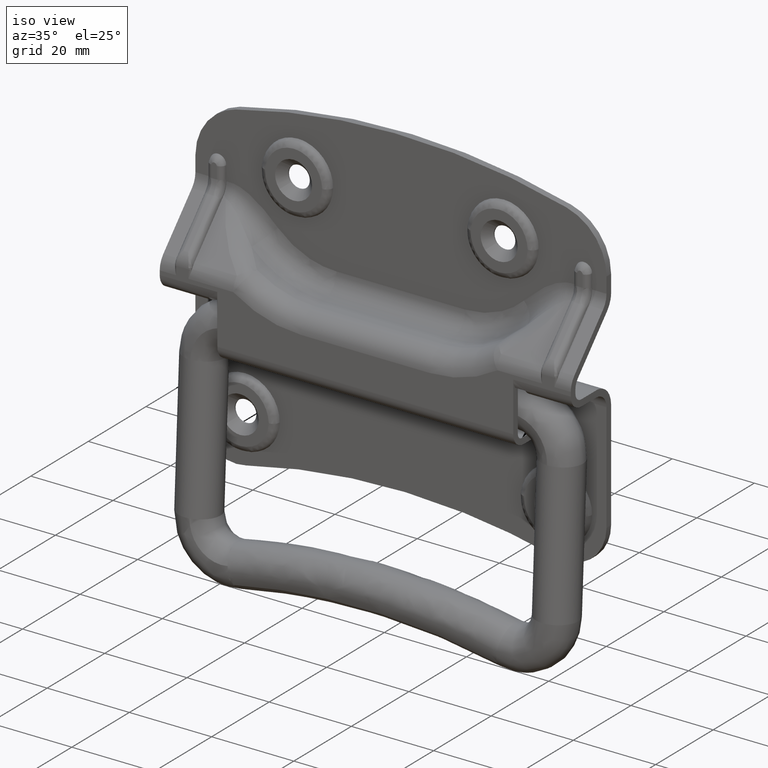
[diagram: clean part render]
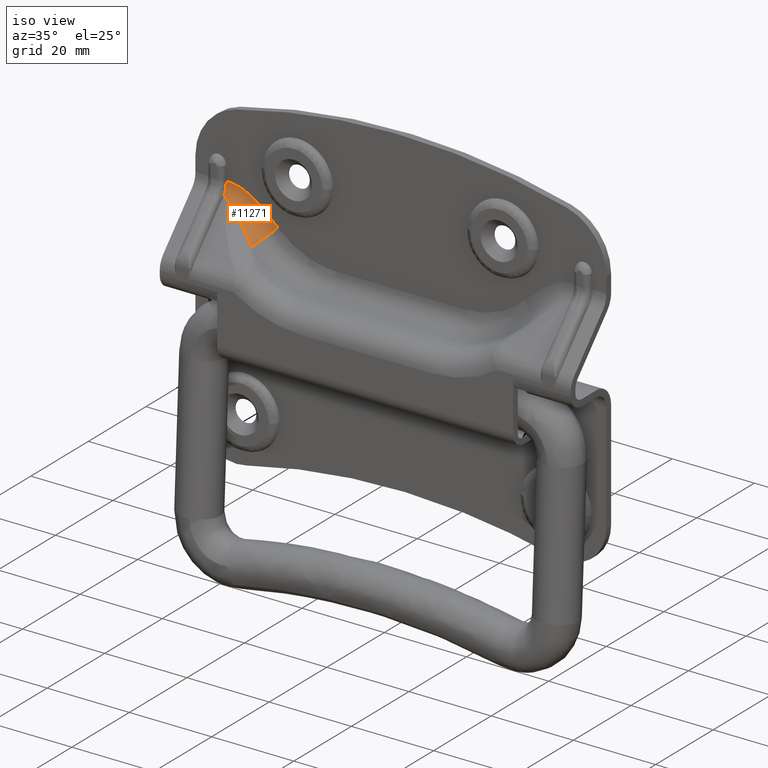
[diagram: same view with one face highlighted and labeled with its STEP entity id]
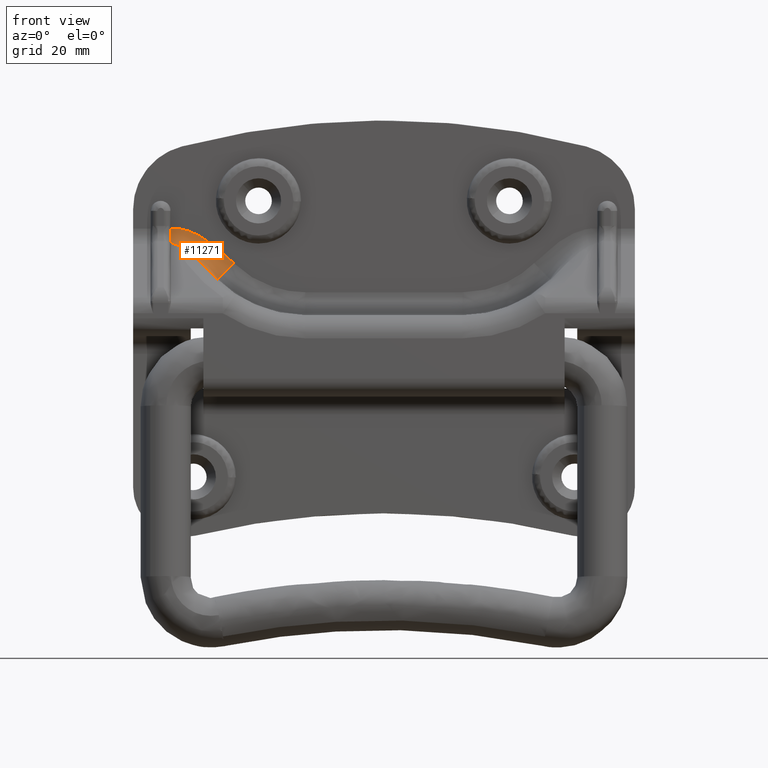
[diagram: same view with one face highlighted and labeled with its STEP entity id]
A machine part, iso view. The second image highlights one B-rep face of the part: STEP entity #11271.
A second angle (front view) of the same face is appended — the face is thin or edge-on in the first view.
In plain terms, the highlighted face is a freeform B-spline surface patch.
Its self-contained STEP definition (entity closure, byte-faithful):
#11035=CARTESIAN_POINT('',(-44.129247402102422,5.800000000000009,26.096322573024537));
#11036=CARTESIAN_POINT('',(-43.810599507989188,5.800000000000005,26.221779869753377));
#11037=CARTESIAN_POINT('',(-43.474151980441832,5.800000000000014,26.321525528890337));
#11038=CARTESIAN_POINT('',(-42.798873674312858,5.800000000000012,26.461865028079909));
#11039=CARTESIAN_POINT('',(-42.457860426138097,5.800000000000011,26.503902602576598));
#11040=CARTESIAN_POINT('',(-41.769754095088082,5.800000000000011,26.537330320813293));
#11041=CARTESIAN_POINT('',(-41.420781215043903,5.800000000000009,26.528275215803003));
#11042=CARTESIAN_POINT('',(-40.735677059251117,5.800000000000011,26.465857584679391));
#11043=CARTESIAN_POINT('',(-40.397513204452878,5.800000000000010,26.412837929170649));
#11044=CARTESIAN_POINT('',(-39.728569050340660,5.800000000000013,26.270097036765275));
#11045=CARTESIAN_POINT('',(-39.397796440588742,5.800000000000013,26.180341488654598));
#11046=CARTESIAN_POINT('',(-38.742640120839752,5.800000000000011,25.969079540948474));
#11047=CARTESIAN_POINT('',(-38.418222764820399,5.800000000000015,25.847371029586679));
#11048=CARTESIAN_POINT('',(-37.469733159872490,5.800000000000007,25.448261968489913));
#11049=CARTESIAN_POINT('',(-36.863704475980079,5.800000000000003,25.135424248554177));
#11050=CARTESIAN_POINT('',(-35.100792309033508,5.800000000000025,24.098939470681604));
#11051=CARTESIAN_POINT('',(-33.994541250280378,5.800000000000025,23.275017461485643));
#11052=CARTESIAN_POINT('',(-31.891290717198352,5.799999999999996,21.521718956481283));
#11053=CARTESIAN_POINT('',(-30.889960550761291,5.799999999999973,20.587795038008892));
#11054=CARTESIAN_POINT('',(-29.889224479801527,5.800000000000011,19.612287233418286));
#11055=CARTESIAN_POINT('',(-29.869723454922511,5.800000000000010,19.593277823725728));
#11056=CARTESIAN_POINT('',(-29.850222669244793,5.800000000000012,19.574268647204278));
#11057=CARTESIAN_POINT('',(-44.126370039664948,5.800000000000010,26.089010609007595));
#11058=CARTESIAN_POINT('',(-43.808132485955497,5.800000000000011,26.214274064597198));
#11059=CARTESIAN_POINT('',(-43.472107164489870,5.800000000000012,26.313835460502755));
#11060=CARTESIAN_POINT('',(-42.797658476548037,5.800000000000008,26.453837796370820));
#11061=CARTESIAN_POINT('',(-42.457054916533835,5.800000000000012,26.495721110857879));
#11062=CARTESIAN_POINT('',(-41.769760910859596,5.800000000000014,26.528862089496346));
#11063=CARTESIAN_POINT('',(-41.421192110520224,5.800000000000011,26.519674166534195));
#11064=CARTESIAN_POINT('',(-40.736869194580372,5.800000000000011,26.457014033900418));
#11065=CARTESIAN_POINT('',(-40.399084466360726,5.800000000000011,26.403883895159709));
#11066=CARTESIAN_POINT('',(-39.730880078420228,5.800000000000011,26.260937359654243));
#11067=CARTESIAN_POINT('',(-39.400467667804733,5.800000000000011,26.171086807896788));
#11068=CARTESIAN_POINT('',(-38.746015528422340,5.800000000000011,25.959645875141966));
#11069=CARTESIAN_POINT('',(-38.421941782681500,5.800000000000012,25.837853547400840));
#11070=CARTESIAN_POINT('',(-37.474438644156862,5.800000000000006,25.438510340242125));
#11071=CARTESIAN_POINT('',(-36.869024991724274,5.800000000000007,25.125534397935887));
#11072=CARTESIAN_POINT('',(-35.107832813597405,5.800000000000020,24.088664007882858));
#11073=CARTESIAN_POINT('',(-34.002602355344024,5.800000000000021,23.264513479462611));
#11074=CARTESIAN_POINT('',(-31.901162803484180,5.800000000000003,21.510704777768389));
#11075=CARTESIAN_POINT('',(-30.900607161354724,5.799999999999993,20.576522395235394));
#11076=CARTESIAN_POINT('',(-29.900602605575816,5.800000000000014,19.600642257193652));
#11077=CARTESIAN_POINT('',(-29.881112713780688,5.800000000000011,19.581622545547798));
#11078=CARTESIAN_POINT('',(-29.861622941694637,5.800000000000014,19.562602950723136));
#11079=CARTESIAN_POINT('',(-43.513698703269228,5.800000000000012,24.532087953876587));
#11080=CARTESIAN_POINT('',(-43.282569941617098,5.800000000000456,24.615273325542706));
#11081=CARTESIAN_POINT('',(-43.036064637889488,5.800000000000011,24.673982814479022));
#11082=CARTESIAN_POINT('',(-42.537798935642371,5.800000000000012,24.737283662470698));
#11083=CARTESIAN_POINT('',(-42.284488009370882,5.800000000000013,24.742973887973356));
#11084=CARTESIAN_POINT('',(-41.771227668812728,5.800000000000013,24.706493830185128));
#11085=CARTESIAN_POINT('',(-41.509856070422202,5.800000000000161,24.663720203882502));
#11086=CARTESIAN_POINT('',(-40.995681077487653,5.799999999999862,24.537084330830055));
#11087=CARTESIAN_POINT('',(-40.741366129605829,5.800000000000011,24.453348698747487));
#11088=CARTESIAN_POINT('',(-40.238088623704847,5.800000000000013,24.250634436988040));
#11089=CARTESIAN_POINT('',(-39.989127419350297,5.799999999999713,24.131627924384780));
#11090=CARTESIAN_POINT('',(-39.496453837452286,5.800000000000310,23.862303837898736));
#11091=CARTESIAN_POINT('',(-39.252719071193717,5.799999999999713,23.711779315141598));
#11092=CARTESIAN_POINT('',(-38.541523735642798,5.800000000000605,23.227087138715230));
#11093=CARTESIAN_POINT('',(-38.089054900537235,5.800000000000896,22.857725386909131));
#11094=CARTESIAN_POINT('',(-36.782613746668957,5.799999999998238,21.644357777024506));
#11095=CARTESIAN_POINT('',(-35.976527269559689,5.799999999998233,20.692400642561605));
#11096=CARTESIAN_POINT('',(-34.484690173758501,5.800000000001793,18.628291542915154));
#11097=CARTESIAN_POINT('',(-33.795164417720741,5.800000000005353,17.511762051827183));
#11098=CARTESIAN_POINT('',(-33.132601706515139,5.799999999999900,16.292843289666976));
#11099=CARTESIAN_POINT('',(-33.119100460993984,5.799999999999788,16.268005004626264));
#11100=CARTESIAN_POINT('',(-33.105575771386377,5.799999999999676,16.243123589423931));
#11101=CARTESIAN_POINT('',(-43.043007962009668,4.728965802054274,23.335966909698833));
#11102=CARTESIAN_POINT('',(-42.879905199213745,4.720749589136831,23.389590133279398));
#11103=CARTESIAN_POINT('',(-42.703755856253636,4.705070412870889,23.422443848518256));
#11104=CARTESIAN_POINT('',(-42.342470159409409,4.659965576453086,23.443972771186921));
#11105=CARTESIAN_POINT('',(-42.156260972881093,4.630610372662917,23.433451407142428));
#11106=CARTESIAN_POINT('',(-41.772976020229592,4.558881474593550,23.373260544037816));
#11107=CARTESIAN_POINT('',(-41.574767495029569,4.516178523257872,23.323016335086930));
#11108=CARTESIAN_POINT('',(-41.178130859876447,4.420814902273051,23.189811008568210));
#11109=CARTESIAN_POINT('',(-40.978608549490836,4.368006107771708,23.106861166083959));
#11110=CARTESIAN_POINT('',(-40.576545982036180,4.253209473984529,22.912860747387363));
#11111=CARTESIAN_POINT('',(-40.374005964547599,4.191216634694110,22.801786904013220));
#11112=CARTESIAN_POINT('',(-39.965279362146667,4.058841439724507,22.554844510371815));
#11113=CARTESIAN_POINT('',(-39.759024550524252,3.988397894129128,22.418808890271212));
#11114=CARTESIAN_POINT('',(-39.144647487758377,3.769527085627074,21.985693360595445));
#11115=CARTESIAN_POINT('',(-38.736853161844415,3.612360426334563,21.661600786608421));
#11116=CARTESIAN_POINT('',(-37.505643538506256,3.114722862935908,20.612450467106253));
#11117=CARTESIAN_POINT('',(-36.670817358265545,2.746588448942540,19.807755871413146));
#11118=CARTESIAN_POINT('',(-34.957712672674859,1.982625868513342,18.115853792657564));
#11119=CARTESIAN_POINT('',(-34.076577985680075,1.585211753190460,17.224637735192623));
#11120=CARTESIAN_POINT('',(-33.127583743913085,1.175708148331474,16.299609833785947));
#11121=CARTESIAN_POINT('',(-33.109088032554432,1.167727003512622,16.281581221693152));
#11122=CARTESIAN_POINT('',(-33.090592434778046,1.159745907706015,16.263552720314141));
#11123=CARTESIAN_POINT('',(-43.040797796437580,4.723936676338937,23.330350428811983));
#11124=CARTESIAN_POINT('',(-42.878015405617170,4.715684431200804,23.383837734312618));
#11125=CARTESIAN_POINT('',(-42.702197777724187,4.699936674687395,23.416575824260622));
#11126=CARTESIAN_POINT('',(-42.341556894703615,4.654635316250219,23.437925862925770));
#11127=CARTESIAN_POINT('',(-42.155662540667144,4.625152861962747,23.427339900092804));
#11128=CARTESIAN_POINT('',(-41.772984143061265,4.553115244310635,23.367066349050464));
#11129=CARTESIAN_POINT('',(-41.575068260193810,4.510229974452265,23.316804223401714));
#11130=CARTESIAN_POINT('',(-41.178971106656235,4.414463259525715,23.183606331008885));
#11131=CARTESIAN_POINT('',(-40.979697428076129,4.361433642846239,23.100681152238199));
#11132=CARTESIAN_POINT('',(-40.578087841495332,4.246162992219155,22.906766452296065));
#11133=CARTESIAN_POINT('',(-40.375752158025698,4.183917586578239,22.795753416967369));
#11134=CARTESIAN_POINT('',(-39.967387721580131,4.051011260089714,22.548964723410830));
#11135=CARTESIAN_POINT('',(-39.761290647321843,3.980289615830222,22.413021877768220));
#11136=CARTESIAN_POINT('',(-39.147306583034201,3.760574990944365,21.980220214629497));
#11137=CARTESIAN_POINT('',(-38.739677685603155,3.602821901271269,21.656385455611421));
#11138=CARTESIAN_POINT('',(-37.508682492967793,3.103436419378105,20.608113274698972));
#11139=CARTESIAN_POINT('',(-36.673652189182803,2.734121173939062,19.804143810130903));
#11140=CARTESIAN_POINT('',(-34.959519846621305,1.968041659326364,18.113896033452502));
#11141=CARTESIAN_POINT('',(-34.077612881333614,1.569711910489630,17.223581838316477));
#11142=CARTESIAN_POINT('',(-33.127566081532095,1.159431421886771,16.299633650878629));
#11143=CARTESIAN_POINT('',(-33.109052821257769,1.151436416301193,16.281628965975123));
#11144=CARTESIAN_POINT('',(-33.090539788027954,1.143441508765434,16.263624501878986));
#11152=(BOUNDED_SURFACE()B_SPLINE_SURFACE(3,2,((#11035,#11057,#11079,#11101,#11123),(#11036,#11058,#11080,#11102,#11124),(#11037,#11059,#11081,#11103,#11125),(#11038,#11060,#11082,#11104,#11126),(#11039,#11061,#11083,#11105,#11127),(#11040,#11062,#11084,#11106,#11128),(#11041,#11063,#11085,#11107,#11129),(#11042,#11064,#11086,#11108,#11130),(#11043,#11065,#11087,#11109,#11131),(#11044,#11066,#11088,#11110,#11132),(#11045,#11067,#11089,#11111,#11133),(#11046,#11068,#11090,#11112,#11134),(#11047,#11069,#11091,#11113,#11135),(#11048,#11070,#11092,#11114,#11136),(#11049,#11071,#11093,#11115,#11137),(#11050,#11072,#11094,#11116,#11138),(#11051,#11073,#11095,#11117,#11139),(#11052,#11074,#11096,#11118,#11140),(#11053,#11075,#11097,#11119,#11141),(#11054,#11076,#11098,#11120,#11142),(#11055,#11077,#11099,#11121,#11143),(#11056,#11078,#11100,#11122,#11144)),.UNSPECIFIED.,.F.,.F.,.U.)B_SPLINE_SURFACE_WITH_KNOTS((4,2,2,2,2,2,2,2,2,2,4),(3,1,1,3),(0.0,1.037516502630683,2.075033005261373,3.112549507892056,4.150066010522738,5.187582513153428,6.225099015784111,8.300132021045483,12.450198031568229,16.600264042090970,16.682769273677199),(0.0,0.038422300010084,7.688011259727680,7.726426633866669),.UNSPECIFIED.)GEOMETRIC_REPRESENTATION_ITEM()RATIONAL_B_SPLINE_SURFACE(((1.000599902426178,1.000299951213089,0.940281985006215,1.000299897144919,1.000599794289838),(1.000604606618789,1.000302303309394,0.939813700444209,1.000302248817244,1.000604497634488),(1.000613717035328,1.000306858517664,0.938906792974311,1.000306803204408,1.000613606408815),(1.000639866430287,1.000319933215144,0.936303719720936,1.000319875545087,1.000639751090174),(1.000656910349962,1.000328455174981,0.934607062054127,1.000328395968786,1.000656791937571),(1.000698723681521,1.000349361840760,0.930444703223737,1.000349298866002,1.000698597732004),(1.000723688016526,1.000361844008263,0.927959598201519,1.000361778783512,1.000723557567024),(1.000779725140068,1.000389862570034,0.922381314737649,1.000389792294754,1.000779584589507),(1.000810883738918,1.000405441869459,0.919279594204260,1.000405368785908,1.000810737571816),(1.000879030319360,1.000439515159680,0.912495860158428,1.000439435934196,1.000878871868391),(1.000916021542852,1.000458010771426,0.908813523927203,1.000457928211986,1.000915856423972),(1.000995570738794,1.000497785369397,0.900894702684377,1.000497695640326,1.000995391280652),(1.001038170082844,1.000519085041422,0.896654099286760,1.000518991472945,1.001037982945891),(1.001171579987773,1.000585789993887,0.883373648408052,1.000585684401405,1.001171368802811),(1.001268712642842,1.000634356321421,0.873704460389017,1.000634241974541,1.001268483949083),(1.001582312905427,1.000791156452713,0.842486741696957,1.000791013841584,1.001582027683168),(1.001822014806831,1.000911007403415,0.818625325044086,1.000910843188367,1.001821686376735),(1.002346842740340,1.001173421370170,0.766380691525702,1.001173209853286,1.002346419706573),(1.002632874449912,1.001316437224956,0.737907317897600,1.001316199928529,1.002632399857058),(1.002948435077703,1.001474217538851,0.706494452272288,1.001473951801490,1.002947903602979),(1.002954586280172,1.001477293140086,0.705882123358029,1.001477026848327,1.002954053696654),(1.002960737482641,1.001480368741320,0.705269794443770,1.001480101895164,1.002960203790328)))REPRESENTATION_ITEM('')SURFACE());
#11153=CARTESIAN_POINT('',(-41.774281333745598,4.563131735757380,23.373639079245699));
#11154=VERTEX_POINT('',#11153);
#11155=CARTESIAN_POINT('',(-43.299999999999997,5.299501277499775,24.162788789182329));
#11156=VERTEX_POINT('',#11155);
#11157=CARTESIAN_POINT('',(-41.774281333745598,4.563131735757380,23.373639079245699));
#11158=CARTESIAN_POINT('',(-41.803600439045773,4.580612350856625,23.392372510315091));
#11159=CARTESIAN_POINT('',(-41.833254413472979,4.598163255683009,23.411181272723599));
#11160=CARTESIAN_POINT('',(-41.892641518178252,4.632892622069886,23.448399674746462));
#11161=CARTESIAN_POINT('',(-41.982079784074926,4.684641136896076,23.503856996330949));
#11162=CARTESIAN_POINT('',(-42.072647256057969,4.735298571455023,23.558145096069168));
#11163=CARTESIAN_POINT('',(-42.255437455414587,4.835014072206285,23.665007382746850));
#11164=CARTESIAN_POINT('',(-42.379506643845453,4.899356602371505,23.733961569207509));
#11165=CARTESIAN_POINT('',(-42.759493278770009,5.084867770952959,23.932769391489231));
#11166=CARTESIAN_POINT('',(-43.023232022840944,5.198479185268179,24.054524565830071));
#11167=CARTESIAN_POINT('',(-43.299999999999997,5.299501277499775,24.162788789182329));
#11168=B_SPLINE_CURVE_WITH_KNOTS('',3,(#11157,#11158,#11159,#11160,#11161,#11162,#11163,#11164,#11165,#11166,#11167),.UNSPECIFIED.,.F.,.U.,(4,2,1,2,2,4),(0.0,0.062499999999995,0.124999999999991,0.249999999999994,0.499999999999999,1.0),.UNSPECIFIED.);
#11169=EDGE_CURVE('',#11154,#11156,#11168,.T.);
#11170=ORIENTED_EDGE('',*,*,#11169,.F.);
#11171=CARTESIAN_POINT('',(-33.146079568855050,1.200000000000000,16.317638556593550));
#11172=VERTEX_POINT('',#11171);
#11173=CARTESIAN_POINT('',(-33.146079568855050,1.200000000000016,16.317638556593600));
#11174=CARTESIAN_POINT('',(-33.815522263827503,1.488641291495805,16.971665815918119));
#11175=CARTESIAN_POINT('',(-34.475363312783642,1.782101794604103,17.633265517655900));
#11176=CARTESIAN_POINT('',(-35.467004965290407,2.224459620933826,18.622790647977752));
#11177=CARTESIAN_POINT('',(-35.797914997982737,2.372266306295388,18.952106342923980));
#11178=CARTESIAN_POINT('',(-36.464318051967183,2.667565879118059,19.606234595935589));
#11179=CARTESIAN_POINT('',(-36.799889242983653,2.815111108290336,19.931181022749008));
#11180=CARTESIAN_POINT('',(-37.480449433178393,3.108397337763052,20.571193070920071));
#11181=CARTESIAN_POINT('',(-37.825236528494237,3.254090288610564,20.886198962847988));
#11182=CARTESIAN_POINT('',(-38.354934847257262,3.469705099378245,21.344956716995700));
#11183=CARTESIAN_POINT('',(-38.533612310543177,3.541084249279394,21.495556171159009));
#11184=CARTESIAN_POINT('',(-38.896633417601201,3.682514179178715,21.790532751620731));
#11185=CARTESIAN_POINT('',(-39.080967051307333,3.752566739751328,21.934921140471250));
#11186=CARTESIAN_POINT('',(-39.457307982515317,3.890894209469114,22.215260887835370));
#11187=CARTESIAN_POINT('',(-39.649294339967447,3.959172776578972,22.351235838335469));
#11188=CARTESIAN_POINT('',(-39.945290344455422,4.059782432955481,22.546361023868091));
#11189=CARTESIAN_POINT('',(-40.045328037115048,4.093020926793447,22.609924055995389));
#11190=CARTESIAN_POINT('',(-40.247286668311453,4.158356812993466,22.732689956803561));
#11191=CARTESIAN_POINT('',(-40.349350641138173,4.190504299464418,22.791992063783240));
#11192=CARTESIAN_POINT('',(-40.659390079477582,4.285127717588997,22.962500663643279));
#11193=CARTESIAN_POINT('',(-40.871122263497782,4.345819866852391,23.066488687981568));
#11194=CARTESIAN_POINT('',(-41.199849636251336,4.431775547136816,23.200963573990119));
#11195=CARTESIAN_POINT('',(-41.311298062400361,4.459573409123367,23.242168920672160));
#11196=CARTESIAN_POINT('',(-41.538906810916806,4.513067938293932,23.315442969635281));
#11197=CARTESIAN_POINT('',(-41.655057510977230,4.538768253811387,23.347530721070971));
#11198=CARTESIAN_POINT('',(-41.774281333745598,4.563131735757379,23.373639079245699));
#11199=B_SPLINE_CURVE_WITH_KNOTS('',3,(#11173,#11174,#11175,#11176,#11177,#11178,#11179,#11180,#11181,#11182,#11183,#11184,#11185,#11186,#11187,#11188,#11189,#11190,#11191,#11192,#11193,#11194,#11195,#11196,#11197,#11198),.UNSPECIFIED.,.F.,.U.,(4,2,2,2,2,2,2,2,2,2,2,2,4),(0.0,0.250000000000000,0.375000000000000,0.499999999999999,0.624999999999999,0.687499999999998,0.749999999999998,0.812499999999998,0.843749999999998,0.874999999999999,0.937499999999999,0.968750000000000,1.0),.UNSPECIFIED.);
#11200=EDGE_CURVE('',#11172,#11154,#11199,.T.);
#11201=ORIENTED_EDGE('',*,*,#11200,.F.);
#11202=CARTESIAN_POINT('',(-29.931492934843650,5.800000000000000,19.607993062180348));
#11203=VERTEX_POINT('',#11202);
#11204=CARTESIAN_POINT('',(-33.146079568855050,1.200000000000000,16.317638556593550));
#11205=CARTESIAN_POINT('',(-33.146084677958882,1.463425049556840,16.317633327068080));
#11206=CARTESIAN_POINT('',(-33.108743284836592,2.084389933943107,16.355854857576691));
#11207=CARTESIAN_POINT('',(-32.924259600068233,2.974360371414398,16.544686826503320));
#11208=CARTESIAN_POINT('',(-32.573825379856828,3.885428843662047,16.903380788328299));
#11209=CARTESIAN_POINT('',(-32.152590745903957,4.567159733474719,17.334543931070250));
#11210=CARTESIAN_POINT('',(-31.669847718717520,5.092636149907817,17.828665221110551));
#11211=CARTESIAN_POINT('',(-31.157714417158001,5.484429868551545,18.352869514880830));
#11212=CARTESIAN_POINT('',(-30.562677682709779,5.742706999317170,18.961931277120581));
#11213=CARTESIAN_POINT('',(-30.128737054760400,5.800019431976731,19.406099894392661));
#11214=CARTESIAN_POINT('',(-29.931492934843650,5.800000000000000,19.607993062180348));
#11215=B_SPLINE_CURVE_WITH_KNOTS('',3,(#11204,#11205,#11206,#11207,#11208,#11209,#11210,#11211,#11212,#11213,#11214),.UNSPECIFIED.,.F.,.U.,(4,1,1,1,1,1,1,1,4),(0.000000142144454,0.790286114895009,1.862879519161683,2.766092587854920,3.895103927670693,4.572504982562729,5.362829139919395,6.378946065239486,7.225708441237647),.UNSPECIFIED.);
#11216=EDGE_CURVE('',#11172,#11203,#11215,.T.);
#11217=ORIENTED_EDGE('',*,*,#11216,.T.);
#11218=CARTESIAN_POINT('',(-42.500000000000000,5.800000000000000,26.474416360982051));
#11219=VERTEX_POINT('',#11218);
#11220=CARTESIAN_POINT('',(-42.500000000000000,5.800000000000000,26.474416360982051));
#11221=CARTESIAN_POINT('',(-42.190497680721471,5.800000000000002,26.507028800525241));
#11222=CARTESIAN_POINT('',(-41.879989912398607,5.800000000000011,26.517824679349960));
#11223=CARTESIAN_POINT('',(-41.258146693833041,5.800000000000011,26.500417778402550));
#11224=CARTESIAN_POINT('',(-40.951096577266050,5.800000000000011,26.472389670199181));
#11225=CARTESIAN_POINT('',(-40.343517042439998,5.800000000000011,26.383785216662371));
#11226=CARTESIAN_POINT('',(-40.042993531559020,5.800000000000011,26.323179384496079));
#11227=CARTESIAN_POINT('',(-39.447597359636113,5.800000000000011,26.173761354547249));
#11228=CARTESIAN_POINT('',(-39.152727918206473,5.800000000000012,26.084933085985170));
#11229=CARTESIAN_POINT('',(-38.714161161488441,5.800000000000011,25.933035325644418));
#11230=CARTESIAN_POINT('',(-38.568673283502832,5.800000000000011,25.879298002005822));
#11231=CARTESIAN_POINT('',(-38.281183047869987,5.800000000000011,25.766924881163391));
#11232=CARTESIAN_POINT('',(-38.138870349944384,5.800000000000011,25.708184740312859));
#11233=CARTESIAN_POINT('',(-37.715860198290549,5.800000000000011,25.524961960283900));
#11234=CARTESIAN_POINT('',(-37.439078407833087,5.800000000000011,25.393498853185172));
#11235=CARTESIAN_POINT('',(-36.622006725923889,5.800000000000011,24.975446474809068));
#11236=CARTESIAN_POINT('',(-36.094890388446402,5.800000000000011,24.665372658371659));
#11237=CARTESIAN_POINT('',(-35.323788280838841,5.800000000000011,24.165370143700880));
#11238=CARTESIAN_POINT('',(-35.070046443670130,5.800000000000011,23.992833623569322));
#11239=CARTESIAN_POINT('',(-34.568283602855189,5.800000000000011,23.637562031459439));
#11240=CARTESIAN_POINT('',(-34.320004569932031,5.800000000000011,23.454619224148459));
#11241=CARTESIAN_POINT('',(-33.585557289051167,5.800000000000011,22.894762208113669));
#11242=CARTESIAN_POINT('',(-33.109064132834717,5.800000000000011,22.506493558616640));
#11243=CARTESIAN_POINT('',(-32.175038501976381,5.800000000000011,21.708264734845141));
#11244=CARTESIAN_POINT('',(-31.717538407479349,5.800000000000011,21.298267516822410));
#11245=CARTESIAN_POINT('',(-30.815791438893811,5.800000000000011,20.463111043603220));
#11246=CARTESIAN_POINT('',(-30.371563557088969,5.799999999999999,20.037930060728350));
#11247=CARTESIAN_POINT('',(-29.931492934843650,5.800000000000000,19.607993062180348));
#11248=B_SPLINE_CURVE_WITH_KNOTS('',3,(#11220,#11221,#11222,#11223,#11224,#11225,#11226,#11227,#11228,#11229,#11230,#11231,#11232,#11233,#11234,#11235,#11236,#11237,#11238,#11239,#11240,#11241,#11242,#11243,#11244,#11245,#11246,#11247),.UNSPECIFIED.,.F.,.U.,(4,2,2,2,2,2,2,2,2,2,2,2,2,4),(0.0,0.062500000000001,0.125000000000002,0.187500000000003,0.250000000000003,0.281250000000004,0.312500000000004,0.375000000000005,0.500000000000005,0.562500000000005,0.625000000000005,0.750000000000003,0.875000000000002,1.0),.UNSPECIFIED.);
#11249=EDGE_CURVE('',#11219,#11203,#11248,.T.);
#11250=ORIENTED_EDGE('',*,*,#11249,.F.);
#11251=CARTESIAN_POINT('',(-42.500000000000000,4.958546509676860,23.797515719189249));
#11252=VERTEX_POINT('',#11251);
#11253=CARTESIAN_POINT('',(-42.500000000000000,4.958546509676860,23.797515719189249));
#11254=CARTESIAN_POINT('',(-42.500000000000000,5.179165299795096,24.114137933650149));
#11255=CARTESIAN_POINT('',(-42.499999999999993,5.471792796762540,24.669908089872951));
#11256=CARTESIAN_POINT('',(-42.500000000000007,5.740141424417384,25.583966230359710));
#11257=CARTESIAN_POINT('',(-42.500000000000071,5.799787183669356,26.147887981893021));
#11258=CARTESIAN_POINT('',(-42.500000000000000,5.800000000000000,26.474416360982051));
#11259=B_SPLINE_CURVE_WITH_KNOTS('',3,(#11253,#11254,#11255,#11256,#11257,#11258),.UNSPECIFIED.,.F.,.U.,(4,1,1,4),(0.000000014403494,1.157697109434655,1.870108456488614,2.849698412633769),.UNSPECIFIED.);
#11260=EDGE_CURVE('',#11252,#11219,#11259,.T.);
#11261=ORIENTED_EDGE('',*,*,#11260,.F.);
#11262=CARTESIAN_POINT('',(-43.299999999999997,5.299501277499775,24.162788789182329));
#11263=CARTESIAN_POINT('',(-43.022774606029650,5.197974067659053,24.054021729571641));
#11264=CARTESIAN_POINT('',(-42.755336588899297,5.083988050877619,23.931905758806501));
#11265=CARTESIAN_POINT('',(-42.500000000000000,4.958546509676860,23.797515719189249));
#11266=B_SPLINE_CURVE_WITH_KNOTS('',3,(#11262,#11263,#11264,#11265),.UNSPECIFIED.,.F.,.U.,(4,4),(1.072745E-009,0.943914914523426),.UNSPECIFIED.);
#11267=EDGE_CURVE('',#11156,#11252,#11266,.T.);
#11268=ORIENTED_EDGE('',*,*,#11267,.F.);
#11269=EDGE_LOOP('',(#11170,#11201,#11217,#11250,#11261,#11268));
#11270=FACE_OUTER_BOUND('',#11269,.T.);
#11271=ADVANCED_FACE('',(#11270),#11152,.F.);